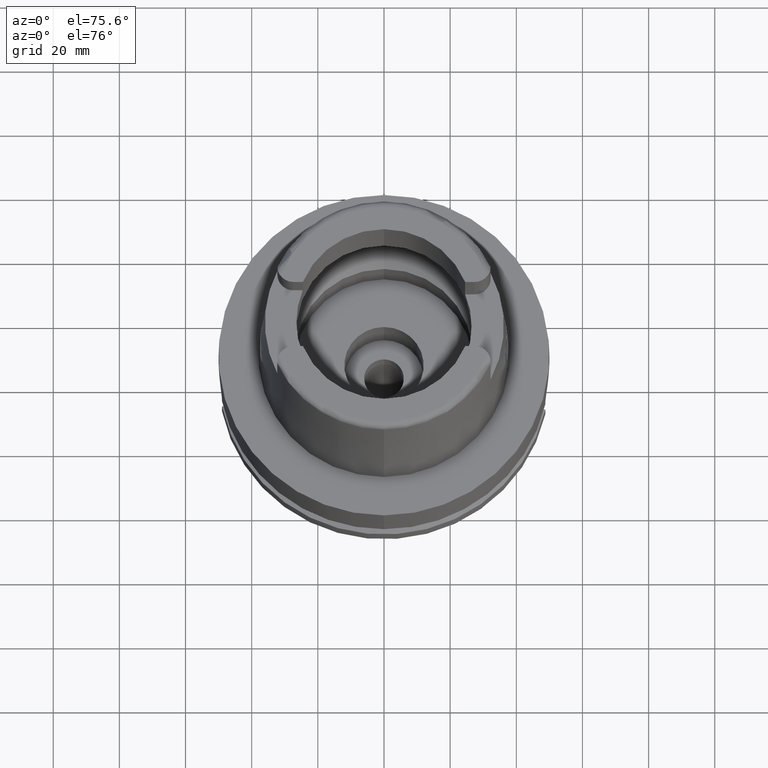
[diagram: clean part render]
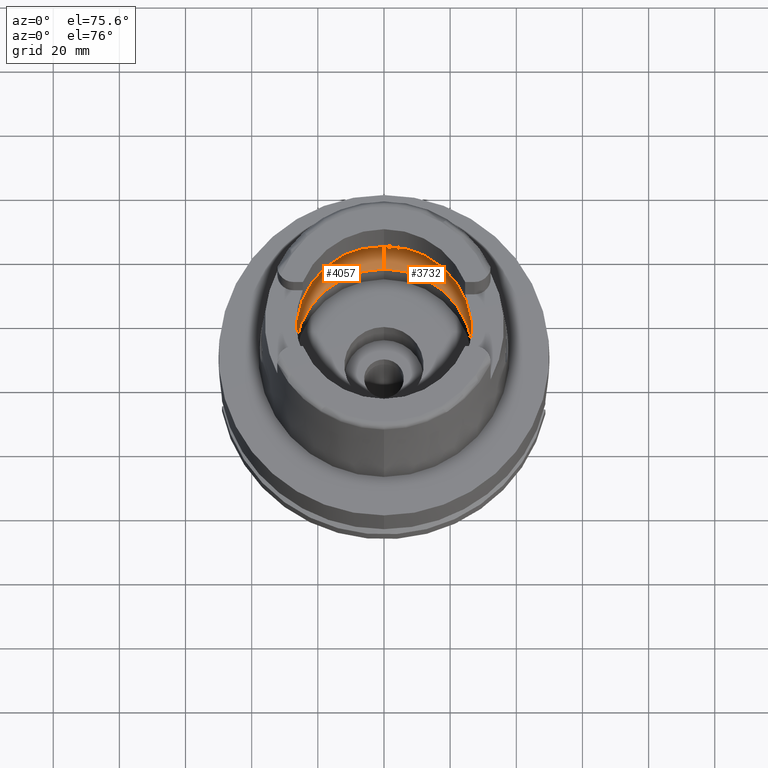
[diagram: same view with one multi-face feature highlighted, each face labeled with its STEP entity id]
A machine part, auxiliary view. The highlighted faces form ONE feature: a constant-radius fillet chain: 2 tangent blend faces with common blend radius 12 mm. The faces share edges in the B-rep.
Their STEP definitions:
[1] entity #4057 (Torus):
#56 = VERTEX_POINT ( 'NONE', #5105 ) ;
#317 = AXIS2_PLACEMENT_3D ( 'NONE', #3426, #1653, #1150 ) ;
#393 = B_SPLINE_CURVE_WITH_KNOTS ( 'NONE', 3,
 ( #4847, #610, #4425, #4913 ),
 .UNSPECIFIED., .F., .F.,
 ( 4, 4 ),
 ( 0.0000000000000000000, 1.000000000000000000 ),
 .UNSPECIFIED. ) ;
#444 = CARTESIAN_POINT ( 'NONE',  ( 0.0000000000000000000, -19.50000000000000000, 9.496624327025999790 ) ) ;
#503 = CIRCLE ( 'NONE', #1041, 31.50000000000000000 ) ;
#590 = DIRECTION ( 'NONE',  ( 0.0000000000000000000, 0.6166666666667049990, -0.7872243785746061429 ) ) ;
#610 = CARTESIAN_POINT ( 'NONE',  ( -31.48971910754000447, 0.8697454016785111097, 9.000000000000001776 ) ) ;
#754 = CIRCLE ( 'NONE', #3513, 31.49999999999998934 ) ;
#879 = TOROIDAL_SURFACE ( 'NONE', #1051, 19.50000000000000000, 12.00000000000000000 ) ;
#972 = CARTESIAN_POINT ( 'NONE',  ( -31.40918884336000616, 2.390158196043999705, 9.496624327025999790 ) ) ;
#1006 = DIRECTION ( 'NONE',  ( 0.0000000000000000000, 0.0000000000000000000, 1.000000000000000000 ) ) ;
#1041 = AXIS2_PLACEMENT_3D ( 'NONE', #4581, #5032, #2041 ) ;
#1051 = AXIS2_PLACEMENT_3D ( 'NONE', #4857, #1006, #1121 ) ;
#1121 = DIRECTION ( 'NONE',  ( 0.0000000000000000000, 1.000000000000000000, 0.0000000000000000000 ) ) ;
#1150 = DIRECTION ( 'NONE',  ( 0.0000000000000000000, 1.000000000000000000, 0.0000000000000000000 ) ) ;
#1504 = VERTEX_POINT ( 'NONE', #3842 ) ;
#1531 = EDGE_CURVE ( 'NONE', #56, #4914, #3356, .T. ) ;
#1653 = DIRECTION ( 'NONE',  ( 0.0000000000000000000, 0.0000000000000000000, 1.000000000000000000 ) ) ;
#1712 = CARTESIAN_POINT ( 'NONE',  ( 0.0000000000000000000, -31.50000000000000000, 9.496624327025999790 ) ) ;
#1720 = DIRECTION ( 'NONE',  ( 0.0000000000000000000, -0.6166666666667049990, -0.7872243785746061429 ) ) ;
#1855 = CARTESIAN_POINT ( 'NONE',  ( 0.0000000000000000000, -26.89999999999999858, 0.04993178413032000468 ) ) ;
#1931 = CARTESIAN_POINT ( 'NONE',  ( 0.0000000000000000000, 19.50000000000000000, 9.496624327025999790 ) ) ;
#2041 = DIRECTION ( 'NONE',  ( 0.0000000000000000000, -1.000000000000000000, 0.0000000000000000000 ) ) ;
#2049 = CARTESIAN_POINT ( 'NONE',  ( -31.48971910754000447, 0.0000000000000000000, 9.000000000000000000 ) ) ;
#2141 = DIRECTION ( 'NONE',  ( -1.000000000000000000, 0.0000000000000000000, 0.0000000000000000000 ) ) ;
#2199 = CARTESIAN_POINT ( 'NONE',  ( -31.46287568614665986, -1.684656700029165899, 9.190219625035021878 ) ) ;
#2379 = ORIENTED_EDGE ( 'NONE', *, *, #3271, .F. ) ;
#2386 = EDGE_CURVE ( 'NONE', #4914, #2745, #4985, .T. ) ;
#2545 = AXIS2_PLACEMENT_3D ( 'NONE', #444, #2141, #1720 ) ;
#2665 = DIRECTION ( 'NONE',  ( 0.0000000000000000000, 0.0000000000000000000, -1.000000000000000000 ) ) ;
#2683 = CARTESIAN_POINT ( 'NONE',  ( -31.40918884336000616, -2.390158196043999705, 9.496624327025999790 ) ) ;
#2745 = VERTEX_POINT ( 'NONE', #1712 ) ;
#2773 = ORIENTED_EDGE ( 'NONE', *, *, #3899, .T. ) ;
#2957 = EDGE_CURVE ( 'NONE', #2745, #3419, #503, .T. ) ;
#2996 = CARTESIAN_POINT ( 'NONE',  ( 0.0000000000000000000, 0.0000000000000000000, 9.496624327025999790 ) ) ;
#3021 = AXIS2_PLACEMENT_3D ( 'NONE', #1931, #4068, #590 ) ;
#3073 = DIRECTION ( 'NONE',  ( -0.9971171061384295209, 0.07587803796965221503, 0.0000000000000000000 ) ) ;
#3271 = EDGE_CURVE ( 'NONE', #3419, #4360, #5003, .T. ) ;
#3356 = CIRCLE ( 'NONE', #317, 26.89999999999999858 ) ;
#3391 = CARTESIAN_POINT ( 'NONE',  ( -31.40918884336000616, -2.390158196043999705, 9.496624327025999790 ) ) ;
#3419 = VERTEX_POINT ( 'NONE', #2683 ) ;
#3420 = CARTESIAN_POINT ( 'NONE',  ( -31.48971910754000447, 0.0000000000000000000, 9.000000000000000000 ) ) ;
#3426 = CARTESIAN_POINT ( 'NONE',  ( 0.0000000000000000000, 0.0000000000000000000, 0.04993178413032000468 ) ) ;
#3481 = VERTEX_POINT ( 'NONE', #972 ) ;
#3513 = AXIS2_PLACEMENT_3D ( 'NONE', #2996, #2665, #3073 ) ;
#3595 = ORIENTED_EDGE ( 'NONE', *, *, #2386, .F. ) ;
#3842 = CARTESIAN_POINT ( 'NONE',  ( 0.0000000000000000000, 31.50000000000000000, 9.496624327025999790 ) ) ;
#3899 = EDGE_CURVE ( 'NONE', #56, #1504, #5470, .T. ) ;
#3916 = CARTESIAN_POINT ( 'NONE',  ( -31.48971910754000447, -0.8697454018008697885, 8.999999999999998224 ) ) ;
#4057 = ADVANCED_FACE ( 'NONE', ( #5409 ), #879, .F. ) ;
#4068 = DIRECTION ( 'NONE',  ( 1.000000000000000000, 0.0000000000000000000, 0.0000000000000000000 ) ) ;
#4297 = ORIENTED_EDGE ( 'NONE', *, *, #4932, .F. ) ;
#4360 = VERTEX_POINT ( 'NONE', #2049 ) ;
#4425 = CARTESIAN_POINT ( 'NONE',  ( -31.46287568614665986, 1.684656699916923683, 9.190219624986275093 ) ) ;
#4497 = EDGE_LOOP ( 'NONE', ( #4926, #3595, #4567, #2773, #5519, #4297, #2379 ) ) ;
#4567 = ORIENTED_EDGE ( 'NONE', *, *, #1531, .F. ) ;
#4581 = CARTESIAN_POINT ( 'NONE',  ( 0.0000000000000000000, 0.0000000000000000000, 9.496624327025999790 ) ) ;
#4749 = EDGE_CURVE ( 'NONE', #3481, #1504, #754, .T. ) ;
#4847 = CARTESIAN_POINT ( 'NONE',  ( -31.48971910754000447, 0.0000000000000000000, 9.000000000000000000 ) ) ;
#4857 = CARTESIAN_POINT ( 'NONE',  ( 0.0000000000000000000, 0.0000000000000000000, 9.496624327025999790 ) ) ;
#4913 = CARTESIAN_POINT ( 'NONE',  ( -31.40918884336000616, 2.390158196043999705, 9.496624327025999790 ) ) ;
#4914 = VERTEX_POINT ( 'NONE', #1855 ) ;
#4926 = ORIENTED_EDGE ( 'NONE', *, *, #2957, .F. ) ;
#4932 = EDGE_CURVE ( 'NONE', #4360, #3481, #393, .T. ) ;
#4985 = CIRCLE ( 'NONE', #2545, 11.99999999999999822 ) ;
#5003 = B_SPLINE_CURVE_WITH_KNOTS ( 'NONE', 3,
 ( #3391, #2199, #3916, #3420 ),
 .UNSPECIFIED., .F., .F.,
 ( 4, 4 ),
 ( 0.0000000000000000000, 1.000000000000000000 ),
 .UNSPECIFIED. ) ;
#5032 = DIRECTION ( 'NONE',  ( 0.0000000000000000000, 0.0000000000000000000, -1.000000000000000000 ) ) ;
#5105 = CARTESIAN_POINT ( 'NONE',  ( 0.0000000000000000000, 26.89999999999999858, 0.04993178413032000468 ) ) ;
#5409 = FACE_OUTER_BOUND ( 'NONE', #4497, .T. ) ;
#5470 = CIRCLE ( 'NONE', #3021, 11.99999999999999822 ) ;
#5519 = ORIENTED_EDGE ( 'NONE', *, *, #4749, .F. ) ;
[2] entity #3732 (Torus):
#56 = VERTEX_POINT ( 'NONE', #5105 ) ;
#123 = FACE_OUTER_BOUND ( 'NONE', #2583, .T. ) ;
#213 = DIRECTION ( 'NONE',  ( 0.0000000000000000000, -1.000000000000000000, 0.0000000000000000000 ) ) ;
#444 = CARTESIAN_POINT ( 'NONE',  ( 0.0000000000000000000, -19.50000000000000000, 9.496624327025999790 ) ) ;
#508 = TOROIDAL_SURFACE ( 'NONE', #2822, 19.50000000000000000, 12.00000000000000000 ) ;
#511 = ORIENTED_EDGE ( 'NONE', *, *, #1137, .F. ) ;
#579 = EDGE_CURVE ( 'NONE', #4914, #56, #2076, .T. ) ;
#590 = DIRECTION ( 'NONE',  ( 0.0000000000000000000, 0.6166666666667049990, -0.7872243785746061429 ) ) ;
#663 = AXIS2_PLACEMENT_3D ( 'NONE', #1004, #4304, #3480 ) ;
#772 = CIRCLE ( 'NONE', #3620, 31.50000000000000000 ) ;
#804 = ORIENTED_EDGE ( 'NONE', *, *, #3899, .F. ) ;
#831 = CARTESIAN_POINT ( 'NONE',  ( 31.48971910753999026, -0.8697454017312684638, 8.999999999999998224 ) ) ;
#1004 = CARTESIAN_POINT ( 'NONE',  ( 0.0000000000000000000, 0.0000000000000000000, 9.496624327025999790 ) ) ;
#1078 = CARTESIAN_POINT ( 'NONE',  ( 31.46287568614665986, 1.684656700008886121, 9.190219625026216477 ) ) ;
#1099 = B_SPLINE_CURVE_WITH_KNOTS ( 'NONE', 3,
 ( #2084, #831, #1721, #3439 ),
 .UNSPECIFIED., .F., .F.,
 ( 4, 4 ),
 ( 0.0000000000000000000, 1.000000000000000000 ),
 .UNSPECIFIED. ) ;
#1137 = EDGE_CURVE ( 'NONE', #3650, #2745, #4253, .T. ) ;
#1275 = ORIENTED_EDGE ( 'NONE', *, *, #2386, .T. ) ;
#1280 = CARTESIAN_POINT ( 'NONE',  ( 0.0000000000000000000, 0.0000000000000000000, 9.496624327025999790 ) ) ;
#1504 = VERTEX_POINT ( 'NONE', #3842 ) ;
#1712 = CARTESIAN_POINT ( 'NONE',  ( 0.0000000000000000000, -31.50000000000000000, 9.496624327025999790 ) ) ;
#1720 = DIRECTION ( 'NONE',  ( 0.0000000000000000000, -0.6166666666667049990, -0.7872243785746061429 ) ) ;
#1721 = CARTESIAN_POINT ( 'NONE',  ( 31.46287568614665986, -1.684656699965325632, 9.190219625007294724 ) ) ;
#1855 = CARTESIAN_POINT ( 'NONE',  ( 0.0000000000000000000, -26.89999999999999858, 0.04993178413032000468 ) ) ;
#1872 = DIRECTION ( 'NONE',  ( 0.0000000000000000000, 0.0000000000000000000, 1.000000000000000000 ) ) ;
#1931 = CARTESIAN_POINT ( 'NONE',  ( 0.0000000000000000000, 19.50000000000000000, 9.496624327025999790 ) ) ;
#2076 = CIRCLE ( 'NONE', #4863, 26.89999999999999858 ) ;
#2084 = CARTESIAN_POINT ( 'NONE',  ( 31.48971910754000447, 0.0000000000000000000, 9.000000000000000000 ) ) ;
#2107 = DIRECTION ( 'NONE',  ( 0.0000000000000000000, 0.0000000000000000000, -1.000000000000000000 ) ) ;
#2141 = DIRECTION ( 'NONE',  ( -1.000000000000000000, 0.0000000000000000000, 0.0000000000000000000 ) ) ;
#2174 = EDGE_CURVE ( 'NONE', #1504, #2949, #772, .T. ) ;
#2386 = EDGE_CURVE ( 'NONE', #4914, #2745, #4985, .T. ) ;
#2545 = AXIS2_PLACEMENT_3D ( 'NONE', #444, #2141, #1720 ) ;
#2583 = EDGE_LOOP ( 'NONE', ( #4868, #4099, #804, #2655, #1275, #511, #4601 ) ) ;
#2655 = ORIENTED_EDGE ( 'NONE', *, *, #579, .F. ) ;
#2745 = VERTEX_POINT ( 'NONE', #1712 ) ;
#2822 = AXIS2_PLACEMENT_3D ( 'NONE', #1280, #3800, #4385 ) ;
#2838 = CARTESIAN_POINT ( 'NONE',  ( 31.48971910753999026, 0.8697454017787721314, 9.000000000000001776 ) ) ;
#2847 = CARTESIAN_POINT ( 'NONE',  ( 31.40918884336000616, 2.390158196043999705, 9.496624327025999790 ) ) ;
#2869 = VERTEX_POINT ( 'NONE', #4551 ) ;
#2949 = VERTEX_POINT ( 'NONE', #2847 ) ;
#3021 = AXIS2_PLACEMENT_3D ( 'NONE', #1931, #4068, #590 ) ;
#3439 = CARTESIAN_POINT ( 'NONE',  ( 31.40918884336000616, -2.390158196043999705, 9.496624327025999790 ) ) ;
#3480 = DIRECTION ( 'NONE',  ( 0.9971171061384295209, -0.07587803796965221503, 0.0000000000000000000 ) ) ;
#3620 = AXIS2_PLACEMENT_3D ( 'NONE', #4190, #2107, #3792 ) ;
#3640 = EDGE_CURVE ( 'NONE', #2949, #2869, #3778, .T. ) ;
#3650 = VERTEX_POINT ( 'NONE', #3657 ) ;
#3657 = CARTESIAN_POINT ( 'NONE',  ( 31.40918884336000616, -2.390158196043999705, 9.496624327025999790 ) ) ;
#3732 = ADVANCED_FACE ( 'NONE', ( #123 ), #508, .F. ) ;
#3778 = B_SPLINE_CURVE_WITH_KNOTS ( 'NONE', 3,
 ( #4938, #1078, #2838, #4135 ),
 .UNSPECIFIED., .F., .F.,
 ( 4, 4 ),
 ( 0.0000000000000000000, 1.000000000000000000 ),
 .UNSPECIFIED. ) ;
#3792 = DIRECTION ( 'NONE',  ( 0.0000000000000000000, 1.000000000000000000, 0.0000000000000000000 ) ) ;
#3800 = DIRECTION ( 'NONE',  ( 0.0000000000000000000, 0.0000000000000000000, 1.000000000000000000 ) ) ;
#3812 = EDGE_CURVE ( 'NONE', #2869, #3650, #1099, .T. ) ;
#3842 = CARTESIAN_POINT ( 'NONE',  ( 0.0000000000000000000, 31.50000000000000000, 9.496624327025999790 ) ) ;
#3899 = EDGE_CURVE ( 'NONE', #56, #1504, #5470, .T. ) ;
#4068 = DIRECTION ( 'NONE',  ( 1.000000000000000000, 0.0000000000000000000, 0.0000000000000000000 ) ) ;
#4099 = ORIENTED_EDGE ( 'NONE', *, *, #2174, .F. ) ;
#4135 = CARTESIAN_POINT ( 'NONE',  ( 31.48971910754000447, 0.0000000000000000000, 9.000000000000000000 ) ) ;
#4190 = CARTESIAN_POINT ( 'NONE',  ( 0.0000000000000000000, 0.0000000000000000000, 9.496624327025999790 ) ) ;
#4253 = CIRCLE ( 'NONE', #663, 31.49999999999998934 ) ;
#4304 = DIRECTION ( 'NONE',  ( 0.0000000000000000000, 0.0000000000000000000, -1.000000000000000000 ) ) ;
#4385 = DIRECTION ( 'NONE',  ( 0.0000000000000000000, 1.000000000000000000, 0.0000000000000000000 ) ) ;
#4445 = CARTESIAN_POINT ( 'NONE',  ( 0.0000000000000000000, 0.0000000000000000000, 0.04993178413032000468 ) ) ;
#4551 = CARTESIAN_POINT ( 'NONE',  ( 31.48971910754000447, 0.0000000000000000000, 9.000000000000000000 ) ) ;
#4601 = ORIENTED_EDGE ( 'NONE', *, *, #3812, .F. ) ;
#4863 = AXIS2_PLACEMENT_3D ( 'NONE', #4445, #1872, #213 ) ;
#4868 = ORIENTED_EDGE ( 'NONE', *, *, #3640, .F. ) ;
#4914 = VERTEX_POINT ( 'NONE', #1855 ) ;
#4938 = CARTESIAN_POINT ( 'NONE',  ( 31.40918884336000616, 2.390158196043999705, 9.496624327025999790 ) ) ;
#4985 = CIRCLE ( 'NONE', #2545, 11.99999999999999822 ) ;
#5105 = CARTESIAN_POINT ( 'NONE',  ( 0.0000000000000000000, 26.89999999999999858, 0.04993178413032000468 ) ) ;
#5470 = CIRCLE ( 'NONE', #3021, 11.99999999999999822 ) ;